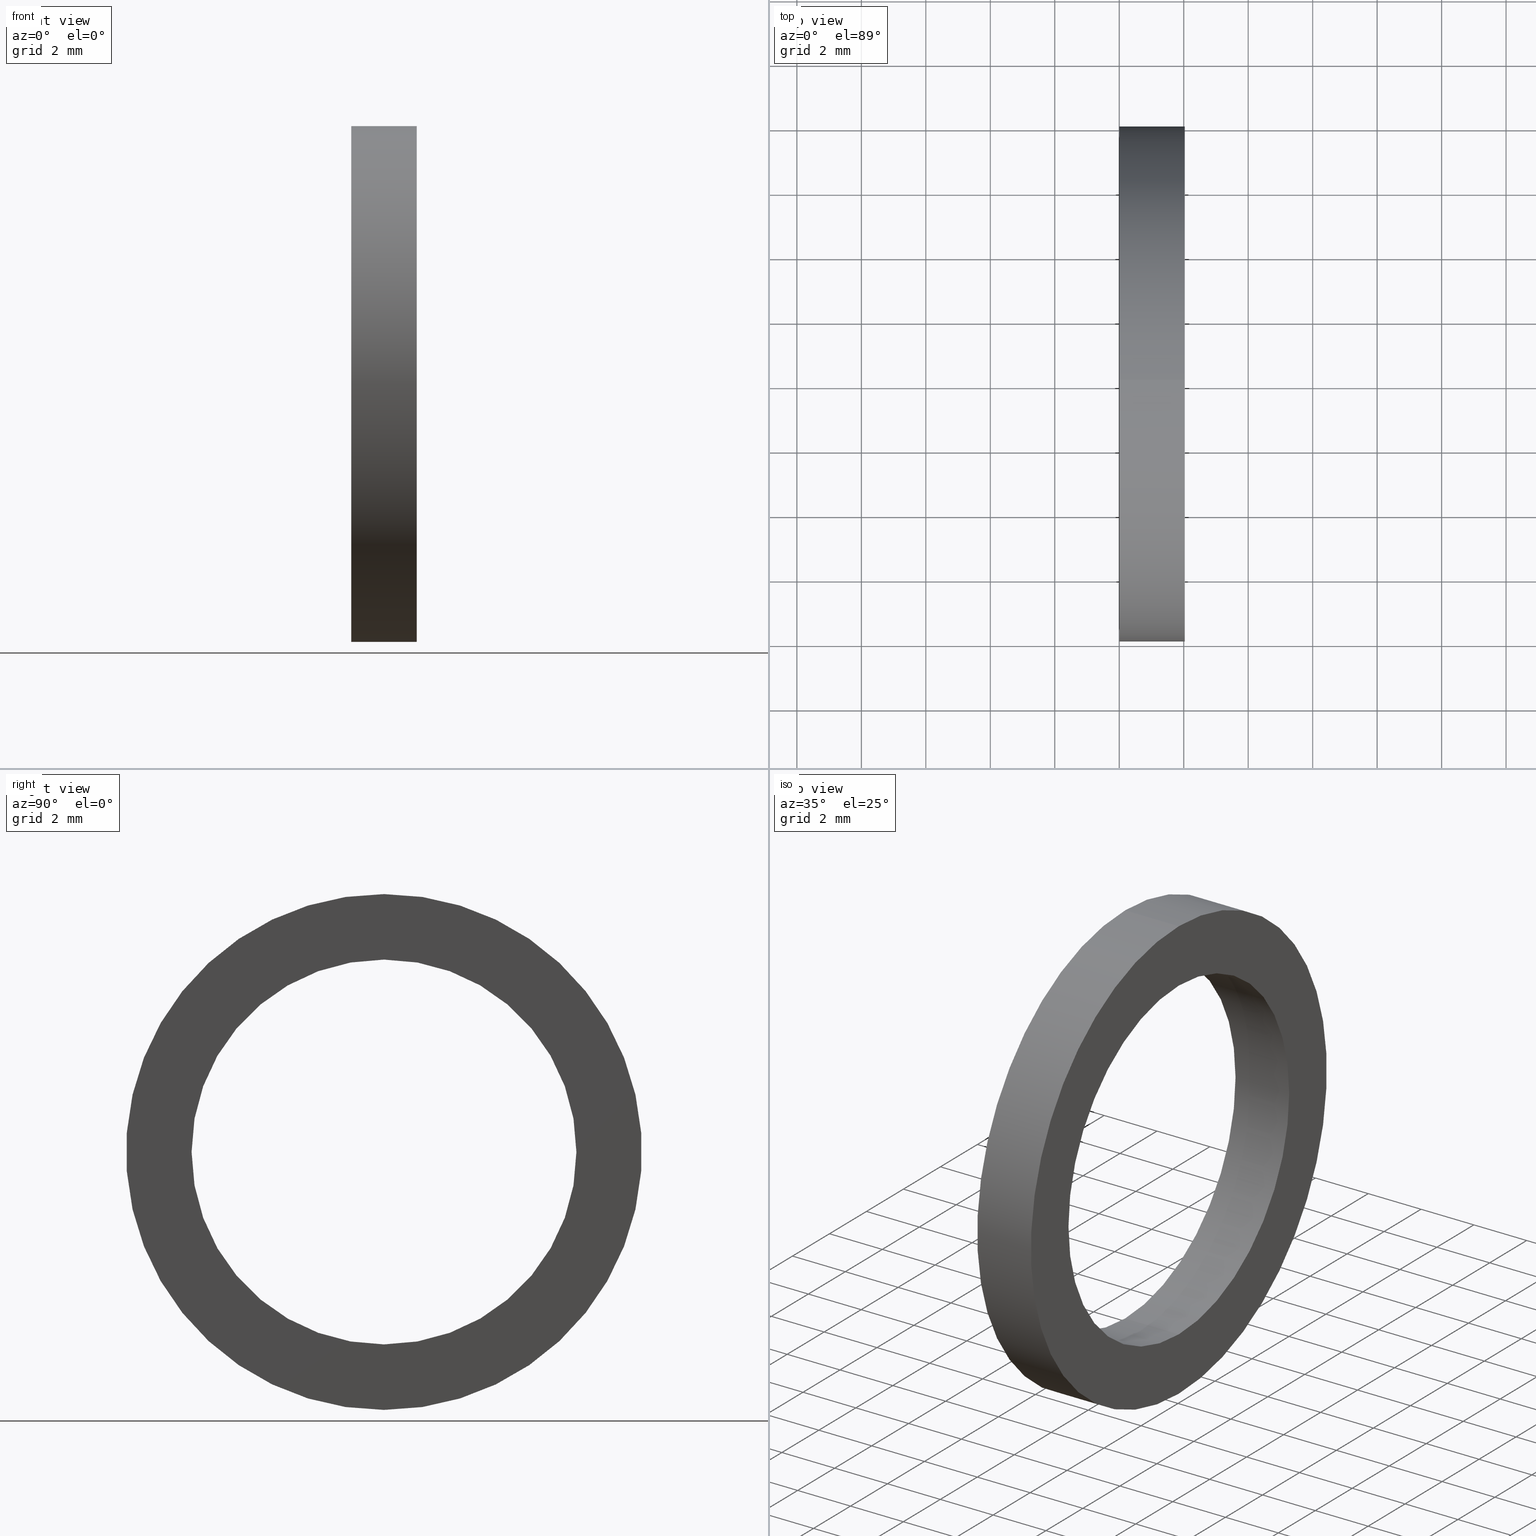
[diagram: canonical four-view strip — front | top / right | iso, engineering-drawing reading convention]
A machine part, canonical four-view strip (front | top / right | iso — engineering-drawing reading convention). The complete STEP part file that produces these views, byte-faithful:
ISO-10303-21;
HEADER;
FILE_DESCRIPTION (( 'STEP AP203' ),
    '1' );
FILE_NAME ('SM-12-VT.STEP',
    '2008-06-24T11:43:38',
    ( 'BSI05' ),
    ( 'BAYSTATE' ),
    'SwSTEP 2.0',
    'SolidWorks 2007',
    '' );
FILE_SCHEMA (( 'CONFIG_CONTROL_DESIGN' ));
ENDSEC;

DATA;
#1 = ADVANCED_FACE ( 'NONE', ( #86, #85 ), #84, .T. ) ;
#2 = EDGE_CURVE ( 'NONE', #40, #39, #61, .T. ) ;
#3 = ORIENTED_EDGE ( 'NONE', *, *, #42, .T. ) ;
#4 = EDGE_LOOP ( 'NONE', ( #15, #3 ) ) ;
#5 = EDGE_LOOP ( 'NONE', ( #8, #7 ) ) ;
#6 = ORIENTED_EDGE ( 'NONE', *, *, #31, .T. ) ;
#7 = ORIENTED_EDGE ( 'NONE', *, *, #16, .F. ) ;
#8 = ORIENTED_EDGE ( 'NONE', *, *, #83, .F. ) ;
#9 = ORIENTED_EDGE ( 'NONE', *, *, #37, .F. ) ;
#10 = ORIENTED_EDGE ( 'NONE', *, *, #35, .F. ) ;
#11 = ORIENTED_EDGE ( 'NONE', *, *, #21, .F. ) ;
#12 = ADVANCED_FACE ( 'NONE', ( #62 ), #147, .T. ) ;
#13 = EDGE_LOOP ( 'NONE', ( #18, #19, #17, #20 ) ) ;
#14 = EDGE_LOOP ( 'NONE', ( #11, #10 ) ) ;
#15 = ORIENTED_EDGE ( 'NONE', *, *, #2, .T. ) ;
#16 = EDGE_CURVE ( 'NONE', #50, #43, #142, .T. ) ;
#17 = ORIENTED_EDGE ( 'NONE', *, *, #47, .T. ) ;
#18 = ORIENTED_EDGE ( 'NONE', *, *, #48, .F. ) ;
#19 = ORIENTED_EDGE ( 'NONE', *, *, #16, .T. ) ;
#20 = ORIENTED_EDGE ( 'NONE', *, *, #45, .F. ) ;
#21 = EDGE_CURVE ( 'NONE', #32, #41, #136, .T. ) ;
#22 = ORIENTED_EDGE ( 'NONE', *, *, #21, .T. ) ;
#23 = CLOSED_SHELL ( 'NONE', ( #64, #30, #59, #12, #1, #25 ) ) ;
#24 = ORIENTED_EDGE ( 'NONE', *, *, #2, .F. ) ;
#25 = ADVANCED_FACE ( 'NONE', ( #137 ), #130, .F. ) ;
#26 = EDGE_LOOP ( 'NONE', ( #57, #66, #49, #46 ) ) ;
#27 = MANIFOLD_SOLID_BREP ( 'NONE', #23 ) ;
#28 = EDGE_LOOP ( 'NONE', ( #65, #36, #34, #33 ) ) ;
#29 = EDGE_LOOP ( 'NONE', ( #9, #24, #6, #22 ) ) ;
#30 = ADVANCED_FACE ( 'NONE', ( #131 ), #126, .T. ) ;
#31 = EDGE_CURVE ( 'NONE', #40, #32, #121, .T. ) ;
#32 = VERTEX_POINT ( 'NONE', #81 ) ;
#33 = ORIENTED_EDGE ( 'NONE', *, *, #31, .F. ) ;
#34 = ORIENTED_EDGE ( 'NONE', *, *, #35, .T. ) ;
#35 = EDGE_CURVE ( 'NONE', #41, #32, #80, .T. ) ;
#36 = ORIENTED_EDGE ( 'NONE', *, *, #37, .T. ) ;
#37 = EDGE_CURVE ( 'NONE', #39, #41, #75, .T. ) ;
#38 = VERTEX_POINT ( 'NONE', #71 ) ;
#39 = VERTEX_POINT ( 'NONE', #70 ) ;
#40 = VERTEX_POINT ( 'NONE', #69 ) ;
#41 = VERTEX_POINT ( 'NONE', #68 ) ;
#42 = EDGE_CURVE ( 'NONE', #39, #40, #118, .T. ) ;
#43 = VERTEX_POINT ( 'NONE', #114 ) ;
#44 = ORIENTED_EDGE ( 'NONE', *, *, #45, .T. ) ;
#45 = EDGE_CURVE ( 'NONE', #58, #38, #113, .T. ) ;
#46 = ORIENTED_EDGE ( 'NONE', *, *, #47, .F. ) ;
#47 = EDGE_CURVE ( 'NONE', #43, #38, #108, .T. ) ;
#48 = EDGE_CURVE ( 'NONE', #50, #58, #104, .T. ) ;
#49 = ORIENTED_EDGE ( 'NONE', *, *, #56, .F. ) ;
#50 = VERTEX_POINT ( 'NONE', #100 ) ;
#51 = EDGE_LOOP ( 'NONE', ( #52, #44 ) ) ;
#52 = ORIENTED_EDGE ( 'NONE', *, *, #56, .T. ) ;
#53 = DIRECTION ( 'NONE',  ( 1.000000000000000000, 0.0000000000000000000, 0.0000000000000000000 ) ) ;
#54 = CARTESIAN_POINT ( 'NONE',  ( 0.07999999999999996000, -0.2349999999999999600, 0.0000000000000000000 ) ) ;
#55 = AXIS2_PLACEMENT_3D ( 'NONE', #54, #53, #63 ) ;
#56 = EDGE_CURVE ( 'NONE', #38, #58, #99, .T. ) ;
#57 = ORIENTED_EDGE ( 'NONE', *, *, #83, .T. ) ;
#58 = VERTEX_POINT ( 'NONE', #94 ) ;
#59 = ADVANCED_FACE ( 'NONE', ( #93, #92 ), #91, .T. ) ;
#60 = CARTESIAN_POINT ( 'NONE',  ( 0.07999999999999996000, 0.0000000000000000000, 0.0000000000000000000 ) ) ;
#61 = CIRCLE ( 'NONE', #151, 0.2349999999999999600 ) ;
#62 = FACE_OUTER_BOUND ( 'NONE', #13, .T. ) ;
#63 = DIRECTION ( 'NONE',  ( 0.0000000000000000000, 0.0000000000000000000, -1.000000000000000000 ) ) ;
#64 = ADVANCED_FACE ( 'NONE', ( #158 ), #176, .F. ) ;
#65 = ORIENTED_EDGE ( 'NONE', *, *, #42, .F. ) ;
#66 = ORIENTED_EDGE ( 'NONE', *, *, #48, .T. ) ;
#67 = CARTESIAN_POINT ( 'NONE',  ( 0.07999999999999996000, 0.0000000000000000000, 0.0000000000000000000 ) ) ;
#68 = CARTESIAN_POINT ( 'NONE',  ( 0.0000000000000000000, 2.877919977996279800E-017, -0.2350000000000000100 ) ) ;
#69 = CARTESIAN_POINT ( 'NONE',  ( 0.07999999999999996000, 0.0000000000000000000, 0.2349999999999999600 ) ) ;
#70 = CARTESIAN_POINT ( 'NONE',  ( 0.07999999999999996000, 2.877919977996279200E-017, -0.2349999999999999600 ) ) ;
#71 = CARTESIAN_POINT ( 'NONE',  ( 0.0000000000000000000, 0.0000000000000000000, 0.3150000000000000000 ) ) ;
#72 = DIRECTION ( 'NONE',  ( -1.000000000000000000, 0.0000000000000000000, 0.0000000000000000000 ) ) ;
#73 = VECTOR ( 'NONE', #72, 39.37007874015748100 ) ;
#74 = CARTESIAN_POINT ( 'NONE',  ( -1.721125226614714300, 2.877919977996279200E-017, -0.2349999999999999600 ) ) ;
#75 = LINE ( 'NONE', #74, #73 ) ;
#76 = DIRECTION ( 'NONE',  ( 0.0000000000000000000, 0.0000000000000000000, 1.000000000000000000 ) ) ;
#77 = DIRECTION ( 'NONE',  ( -1.000000000000000000, 0.0000000000000000000, 0.0000000000000000000 ) ) ;
#78 = CARTESIAN_POINT ( 'NONE',  ( 0.0000000000000000000, 0.0000000000000000000, 0.0000000000000000000 ) ) ;
#79 = AXIS2_PLACEMENT_3D ( 'NONE', #78, #77, #76 ) ;
#80 = CIRCLE ( 'NONE', #79, 0.2349999999999999900 ) ;
#81 = CARTESIAN_POINT ( 'NONE',  ( 0.0000000000000000000, 0.0000000000000000000, 0.2349999999999999900 ) ) ;
#82 = DIRECTION ( 'NONE',  ( -1.000000000000000000, 0.0000000000000000000, 0.0000000000000000000 ) ) ;
#83 = EDGE_CURVE ( 'NONE', #43, #50, #175, .T. ) ;
#84 = PLANE ( 'NONE',  #55 ) ;
#85 = FACE_OUTER_BOUND ( 'NONE', #5, .T. ) ;
#86 = FACE_BOUND ( 'NONE', #4, .T. ) ;
#87 = DIRECTION ( 'NONE',  ( 0.0000000000000000000, 0.0000000000000000000, 1.000000000000000000 ) ) ;
#88 = DIRECTION ( 'NONE',  ( -1.000000000000000000, 0.0000000000000000000, 0.0000000000000000000 ) ) ;
#89 = CARTESIAN_POINT ( 'NONE',  ( -3.122746202247062400E-017, -0.2349999999999999900, 0.0000000000000000000 ) ) ;
#90 = AXIS2_PLACEMENT_3D ( 'NONE', #89, #88, #87 ) ;
#91 = PLANE ( 'NONE',  #90 ) ;
#92 = FACE_BOUND ( 'NONE', #14, .T. ) ;
#93 = FACE_OUTER_BOUND ( 'NONE', #51, .T. ) ;
#94 = CARTESIAN_POINT ( 'NONE',  ( 0.0000000000000000000, 3.857637417314162700E-017, -0.3150000000000000000 ) ) ;
#95 = DIRECTION ( 'NONE',  ( 0.0000000000000000000, 0.0000000000000000000, 1.000000000000000000 ) ) ;
#96 = DIRECTION ( 'NONE',  ( -1.000000000000000000, 0.0000000000000000000, 0.0000000000000000000 ) ) ;
#97 = CARTESIAN_POINT ( 'NONE',  ( 0.0000000000000000000, 0.0000000000000000000, 0.0000000000000000000 ) ) ;
#98 = AXIS2_PLACEMENT_3D ( 'NONE', #97, #96, #95 ) ;
#99 = CIRCLE ( 'NONE', #98, 0.3150000000000000000 ) ;
#100 = CARTESIAN_POINT ( 'NONE',  ( 0.07999999999999996000, 3.857637417314163300E-017, -0.3150000000000000600 ) ) ;
#101 = DIRECTION ( 'NONE',  ( -1.000000000000000000, 0.0000000000000000000, 0.0000000000000000000 ) ) ;
#102 = VECTOR ( 'NONE', #101, 39.37007874015748100 ) ;
#103 = CARTESIAN_POINT ( 'NONE',  ( -1.721125226614714300, 3.857637417314163300E-017, -0.3150000000000000600 ) ) ;
#104 = LINE ( 'NONE', #103, #102 ) ;
#105 = DIRECTION ( 'NONE',  ( -1.000000000000000000, 0.0000000000000000000, 0.0000000000000000000 ) ) ;
#106 = VECTOR ( 'NONE', #105, 39.37007874015748100 ) ;
#107 = CARTESIAN_POINT ( 'NONE',  ( -1.721125226614714300, 0.0000000000000000000, 0.3150000000000000600 ) ) ;
#108 = LINE ( 'NONE', #107, #106 ) ;
#109 = DIRECTION ( 'NONE',  ( 0.0000000000000000000, 0.0000000000000000000, 1.000000000000000000 ) ) ;
#110 = DIRECTION ( 'NONE',  ( -1.000000000000000000, 0.0000000000000000000, 0.0000000000000000000 ) ) ;
#111 = CARTESIAN_POINT ( 'NONE',  ( 0.0000000000000000000, 0.0000000000000000000, 0.0000000000000000000 ) ) ;
#112 = AXIS2_PLACEMENT_3D ( 'NONE', #111, #110, #109 ) ;
#113 = CIRCLE ( 'NONE', #112, 0.3150000000000000000 ) ;
#114 = CARTESIAN_POINT ( 'NONE',  ( 0.07999999999999996000, 0.0000000000000000000, 0.3150000000000000600 ) ) ;
#115 = DIRECTION ( 'NONE',  ( 0.0000000000000000000, 0.0000000000000000000, 1.000000000000000000 ) ) ;
#116 = DIRECTION ( 'NONE',  ( -1.000000000000000000, 0.0000000000000000000, 0.0000000000000000000 ) ) ;
#117 = AXIS2_PLACEMENT_3D ( 'NONE', #67, #116, #115 ) ;
#118 = CIRCLE ( 'NONE', #117, 0.2349999999999999600 ) ;
#119 = VECTOR ( 'NONE', #82, 39.37007874015748100 ) ;
#120 = CARTESIAN_POINT ( 'NONE',  ( -1.721125226614714300, 0.0000000000000000000, 0.2349999999999999600 ) ) ;
#121 = LINE ( 'NONE', #120, #119 ) ;
#122 = DIRECTION ( 'NONE',  ( 0.0000000000000000000, 0.0000000000000000000, 1.000000000000000000 ) ) ;
#123 = DIRECTION ( 'NONE',  ( -1.000000000000000000, 0.0000000000000000000, 0.0000000000000000000 ) ) ;
#124 = CARTESIAN_POINT ( 'NONE',  ( -1.721125226614714300, 0.0000000000000000000, 0.0000000000000000000 ) ) ;
#125 = AXIS2_PLACEMENT_3D ( 'NONE', #124, #123, #122 ) ;
#126 = CYLINDRICAL_SURFACE ( 'NONE', #125, 0.3150000000000000600 ) ;
#127 = DIRECTION ( 'NONE',  ( 0.0000000000000000000, 0.0000000000000000000, 1.000000000000000000 ) ) ;
#128 = DIRECTION ( 'NONE',  ( -1.000000000000000000, 0.0000000000000000000, 0.0000000000000000000 ) ) ;
#129 = AXIS2_PLACEMENT_3D ( 'NONE', #132, #128, #127 ) ;
#130 = CYLINDRICAL_SURFACE ( 'NONE', #129, 0.2349999999999999600 ) ;
#131 = FACE_OUTER_BOUND ( 'NONE', #26, .T. ) ;
#132 = CARTESIAN_POINT ( 'NONE',  ( -1.721125226614714300, 0.0000000000000000000, 0.0000000000000000000 ) ) ;
#133 = DIRECTION ( 'NONE',  ( 0.0000000000000000000, 0.0000000000000000000, 1.000000000000000000 ) ) ;
#134 = DIRECTION ( 'NONE',  ( -1.000000000000000000, 0.0000000000000000000, 0.0000000000000000000 ) ) ;
#135 = AXIS2_PLACEMENT_3D ( 'NONE', #143, #134, #133 ) ;
#136 = CIRCLE ( 'NONE', #135, 0.2349999999999999900 ) ;
#137 = FACE_OUTER_BOUND ( 'NONE', #29, .T. ) ;
#138 = DIRECTION ( 'NONE',  ( 0.0000000000000000000, 0.0000000000000000000, 1.000000000000000000 ) ) ;
#139 = DIRECTION ( 'NONE',  ( -1.000000000000000000, 0.0000000000000000000, 0.0000000000000000000 ) ) ;
#140 = CARTESIAN_POINT ( 'NONE',  ( 0.07999999999999996000, 0.0000000000000000000, 0.0000000000000000000 ) ) ;
#141 = AXIS2_PLACEMENT_3D ( 'NONE', #140, #139, #138 ) ;
#142 = CIRCLE ( 'NONE', #141, 0.3150000000000000600 ) ;
#143 = CARTESIAN_POINT ( 'NONE',  ( 0.0000000000000000000, 0.0000000000000000000, 0.0000000000000000000 ) ) ;
#144 = DIRECTION ( 'NONE',  ( 0.0000000000000000000, 0.0000000000000000000, 1.000000000000000000 ) ) ;
#145 = DIRECTION ( 'NONE',  ( -1.000000000000000000, 0.0000000000000000000, 0.0000000000000000000 ) ) ;
#146 = AXIS2_PLACEMENT_3D ( 'NONE', #148, #145, #144 ) ;
#147 = CYLINDRICAL_SURFACE ( 'NONE', #146, 0.3150000000000000600 ) ;
#148 = CARTESIAN_POINT ( 'NONE',  ( -1.721125226614714300, 0.0000000000000000000, 0.0000000000000000000 ) ) ;
#149 = DIRECTION ( 'NONE',  ( 0.0000000000000000000, 0.0000000000000000000, 1.000000000000000000 ) ) ;
#150 = DIRECTION ( 'NONE',  ( -1.000000000000000000, 0.0000000000000000000, 0.0000000000000000000 ) ) ;
#151 = AXIS2_PLACEMENT_3D ( 'NONE', #60, #150, #149 ) ;
#152 = DIRECTION ( 'NONE',  ( 1.000000000000000000, 0.0000000000000000000, 0.0000000000000000000 ) ) ;
#153 = CARTESIAN_POINT ( 'NONE',  ( 0.0000000000000000000, 0.0000000000000000000, 0.0000000000000000000 ) ) ;
#154 = AXIS2_PLACEMENT_3D ( 'NONE', #153, #166, #152 ) ;
#155 = SHAPE_DEFINITION_REPRESENTATION ( #177, #156 ) ;
#156 = ADVANCED_BREP_SHAPE_REPRESENTATION ( 'SM-12-VT', ( #27, #154 ), #157 ) ;
#157 =( GEOMETRIC_REPRESENTATION_CONTEXT ( 3 ) GLOBAL_UNCERTAINTY_ASSIGNED_CONTEXT ( ( #159 ) ) GLOBAL_UNIT_ASSIGNED_CONTEXT ( ( #162, #161, #160 ) ) REPRESENTATION_CONTEXT ( 'NONE', 'WORKASPACE' ) );
#158 = FACE_OUTER_BOUND ( 'NONE', #28, .T. ) ;
#159 = UNCERTAINTY_MEASURE_WITH_UNIT (LENGTH_MEASURE( 1.000000000000000100E-005 ), #162, 'distance_accuracy_value', 'NONE');
#160 =( NAMED_UNIT ( * ) SI_UNIT ( $, .STERADIAN. ) SOLID_ANGLE_UNIT ( ) );
#161 =( NAMED_UNIT ( * ) PLANE_ANGLE_UNIT ( ) SI_UNIT ( $, .RADIAN. ) );
#162 =( CONVERSION_BASED_UNIT ( 'INCH', #163 ) LENGTH_UNIT ( ) NAMED_UNIT ( #164 ) );
#163 = LENGTH_MEASURE_WITH_UNIT ( LENGTH_MEASURE( 0.02539999999999999900 ), #165 );
#164 = DIMENSIONAL_EXPONENTS ( 1.000000000000000000, 0.0000000000000000000, 0.0000000000000000000, 0.0000000000000000000, 0.0000000000000000000, 0.0000000000000000000, 0.0000000000000000000 ) ;
#165 =( LENGTH_UNIT ( ) NAMED_UNIT ( * ) SI_UNIT ( $, .METRE. ) );
#166 = DIRECTION ( 'NONE',  ( 0.0000000000000000000, 0.0000000000000000000, 1.000000000000000000 ) ) ;
#167 = DIRECTION ( 'NONE',  ( 0.0000000000000000000, 0.0000000000000000000, 1.000000000000000000 ) ) ;
#168 = DIRECTION ( 'NONE',  ( -1.000000000000000000, 0.0000000000000000000, 0.0000000000000000000 ) ) ;
#169 = CARTESIAN_POINT ( 'NONE',  ( 0.07999999999999996000, 0.0000000000000000000, 0.0000000000000000000 ) ) ;
#170 = AXIS2_PLACEMENT_3D ( 'NONE', #169, #168, #167 ) ;
#171 = DIRECTION ( 'NONE',  ( 0.0000000000000000000, 0.0000000000000000000, 1.000000000000000000 ) ) ;
#172 = DIRECTION ( 'NONE',  ( -1.000000000000000000, 0.0000000000000000000, 0.0000000000000000000 ) ) ;
#173 = CARTESIAN_POINT ( 'NONE',  ( -1.721125226614714300, 0.0000000000000000000, 0.0000000000000000000 ) ) ;
#174 = AXIS2_PLACEMENT_3D ( 'NONE', #173, #172, #171 ) ;
#175 = CIRCLE ( 'NONE', #170, 0.3150000000000000600 ) ;
#176 = CYLINDRICAL_SURFACE ( 'NONE', #174, 0.2349999999999999600 ) ;
#177 = PRODUCT_DEFINITION_SHAPE ( 'NONE', 'NONE',  #240 ) ;
#178 = PRODUCT_RELATED_PRODUCT_CATEGORY ( 'detail', '', ( #249 ) ) ;
#179 = CC_DESIGN_SECURITY_CLASSIFICATION ( #200, ( #219 ) ) ;
#180 = CC_DESIGN_APPROVAL ( #188, ( #200 ) ) ;
#181 = APPROVAL_DATE_TIME ( #182, #188 ) ;
#182 = DATE_AND_TIME ( #183, #184 ) ;
#183 = CALENDAR_DATE ( 2008, 24, 6 ) ;
#184 = LOCAL_TIME ( 17, 13, 38.00000000000000000, #185 ) ;
#185 = COORDINATED_UNIVERSAL_TIME_OFFSET ( 5, 30, .AHEAD. ) ;
#186 = APPROVAL_PERSON_ORGANIZATION ( #190, #188, #187 ) ;
#187 = APPROVAL_ROLE ( '' ) ;
#188 = APPROVAL ( #189, 'UNSPECIFIED' ) ;
#189 = APPROVAL_STATUS ( 'not_yet_approved' ) ;
#190 = PERSON_AND_ORGANIZATION ( #248, #247 ) ;
#191 = CC_DESIGN_DATE_AND_TIME_ASSIGNMENT ( #193, #192, ( #200 ) ) ;
#192 = DATE_TIME_ROLE ( 'classification_date' ) ;
#193 = DATE_AND_TIME ( #194, #195 ) ;
#194 = CALENDAR_DATE ( 2008, 24, 6 ) ;
#195 = LOCAL_TIME ( 17, 13, 38.00000000000000000, #196 ) ;
#196 = COORDINATED_UNIVERSAL_TIME_OFFSET ( 5, 30, .AHEAD. ) ;
#197 = CC_DESIGN_PERSON_AND_ORGANIZATION_ASSIGNMENT ( #199, #198, ( #200 ) ) ;
#198 = PERSON_AND_ORGANIZATION_ROLE ( 'classification_officer' ) ;
#199 = PERSON_AND_ORGANIZATION ( #248, #247 ) ;
#200 = SECURITY_CLASSIFICATION ( '', '', #201 ) ;
#201 = SECURITY_CLASSIFICATION_LEVEL ( 'unclassified' ) ;
#202 = CC_DESIGN_PERSON_AND_ORGANIZATION_ASSIGNMENT ( #204, #203, ( #219 ) ) ;
#203 = PERSON_AND_ORGANIZATION_ROLE ( 'design_supplier' ) ;
#204 = PERSON_AND_ORGANIZATION ( #248, #247 ) ;
#205 = CC_DESIGN_PERSON_AND_ORGANIZATION_ASSIGNMENT ( #207, #206, ( #219 ) ) ;
#206 = PERSON_AND_ORGANIZATION_ROLE ( 'creator' ) ;
#207 = PERSON_AND_ORGANIZATION ( #248, #247 ) ;
#208 = CC_DESIGN_APPROVAL ( #216, ( #219 ) ) ;
#209 = APPROVAL_DATE_TIME ( #210, #216 ) ;
#210 = DATE_AND_TIME ( #211, #212 ) ;
#211 = CALENDAR_DATE ( 2008, 24, 6 ) ;
#212 = LOCAL_TIME ( 17, 13, 38.00000000000000000, #213 ) ;
#213 = COORDINATED_UNIVERSAL_TIME_OFFSET ( 5, 30, .AHEAD. ) ;
#214 = APPROVAL_PERSON_ORGANIZATION ( #218, #216, #215 ) ;
#215 = APPROVAL_ROLE ( '' ) ;
#216 = APPROVAL ( #217, 'UNSPECIFIED' ) ;
#217 = APPROVAL_STATUS ( 'not_yet_approved' ) ;
#218 = PERSON_AND_ORGANIZATION ( #248, #247 ) ;
#219 = PRODUCT_DEFINITION_FORMATION_WITH_SPECIFIED_SOURCE ( 'ANY', '', #249, .NOT_KNOWN. ) ;
#220 = CC_DESIGN_DATE_AND_TIME_ASSIGNMENT ( #222, #221, ( #240 ) ) ;
#221 = DATE_TIME_ROLE ( 'creation_date' ) ;
#222 = DATE_AND_TIME ( #223, #224 ) ;
#223 = CALENDAR_DATE ( 2008, 24, 6 ) ;
#224 = LOCAL_TIME ( 17, 13, 38.00000000000000000, #225 ) ;
#225 = COORDINATED_UNIVERSAL_TIME_OFFSET ( 5, 30, .AHEAD. ) ;
#226 = CC_DESIGN_PERSON_AND_ORGANIZATION_ASSIGNMENT ( #228, #227, ( #240 ) ) ;
#227 = PERSON_AND_ORGANIZATION_ROLE ( 'creator' ) ;
#228 = PERSON_AND_ORGANIZATION ( #248, #247 ) ;
#229 = CC_DESIGN_APPROVAL ( #237, ( #240 ) ) ;
#230 = APPROVAL_DATE_TIME ( #231, #237 ) ;
#231 = DATE_AND_TIME ( #232, #233 ) ;
#232 = CALENDAR_DATE ( 2008, 24, 6 ) ;
#233 = LOCAL_TIME ( 17, 13, 38.00000000000000000, #234 ) ;
#234 = COORDINATED_UNIVERSAL_TIME_OFFSET ( 5, 30, .AHEAD. ) ;
#235 = APPROVAL_PERSON_ORGANIZATION ( #239, #237, #236 ) ;
#236 = APPROVAL_ROLE ( '' ) ;
#237 = APPROVAL ( #238, 'UNSPECIFIED' ) ;
#238 = APPROVAL_STATUS ( 'not_yet_approved' ) ;
#239 = PERSON_AND_ORGANIZATION ( #248, #247 ) ;
#240 = PRODUCT_DEFINITION ( 'UNKNOWN', '', #219, #241 ) ;
#241 = DESIGN_CONTEXT ( 'detailed design', #243, 'design' ) ;
#242 = APPLICATION_PROTOCOL_DEFINITION ( 'international standard', 'config_control_design', 1994, #243 ) ;
#243 = APPLICATION_CONTEXT ( 'configuration controlled 3d designs of mechanical parts and assemblies' ) ;
#244 = CC_DESIGN_PERSON_AND_ORGANIZATION_ASSIGNMENT ( #246, #245, ( #249 ) ) ;
#245 = PERSON_AND_ORGANIZATION_ROLE ( 'design_owner' ) ;
#246 = PERSON_AND_ORGANIZATION ( #248, #247 ) ;
#247 = ORGANIZATION ( 'UNSPECIFIED', 'UNSPECIFIED', '' ) ;
#248 = PERSON ( 'UNSPECIFIED', 'UNSPECIFIED', 'UNSPECIFIED', ('UNSPECIFIED'), ('UNSPECIFIED'), ('UNSPECIFIED') ) ;
#249 = PRODUCT ( 'SM-12-VT', 'SM-12-VT', '', ( #250 ) ) ;
#250 = MECHANICAL_CONTEXT ( 'NONE', #252, 'mechanical' ) ;
#251 = APPLICATION_PROTOCOL_DEFINITION ( 'international standard', 'config_control_design', 1994, #252 ) ;
#252 = APPLICATION_CONTEXT ( 'configuration controlled 3d designs of mechanical parts and assemblies' ) ;
ENDSEC;
END-ISO-10303-21;
